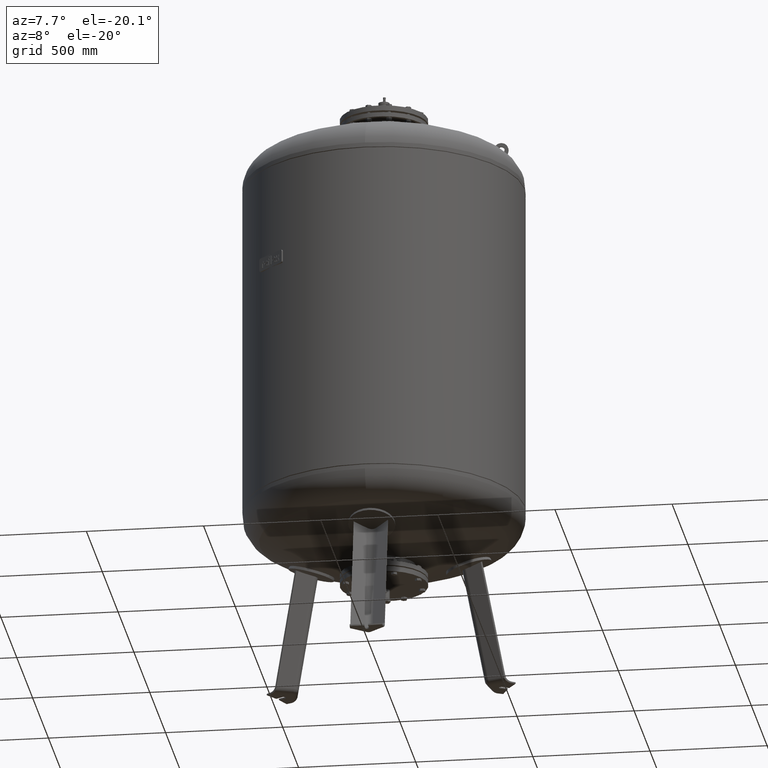
[diagram: clean part render]
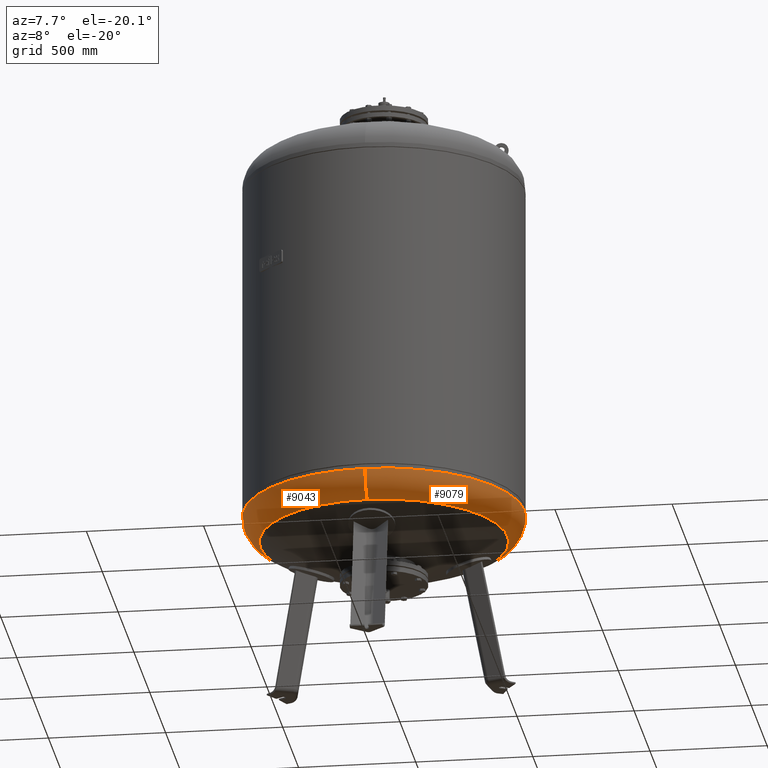
[diagram: same view with one multi-face feature highlighted, each face labeled with its STEP entity id]
A machine part, auxiliary view. The highlighted faces form ONE feature: a constant-radius fillet chain: 2 tangent blend faces with common blend radius 127 mm. The faces share edges in the B-rep.
Their STEP definitions:
[1] entity #9043 (Torus):
#8948=CARTESIAN_POINT('',(-600.0,-4.336858E-014,696.087542566272190));
#8949=VERTEX_POINT('',#8948);
#8973=CARTESIAN_POINT('',(-1.445307E-013,600.0,696.087542566272420));
#8974=VERTEX_POINT('',#8973);
#8982=CARTESIAN_POINT('',(-3.551733E-014,-4.336858E-014,696.087542566272300));
#8983=DIRECTION('',(0.0,0.0,1.0));
#8984=DIRECTION('',(-1.0,0.0,0.0));
#8985=AXIS2_PLACEMENT_3D('',#8982,#8983,#8984);
#8986=CIRCLE('',#8985,600.0);
#8987=EDGE_CURVE('',#8974,#8949,#8986,.T.);
#8992=CARTESIAN_POINT('',(-7.105427E-014,-4.336858E-014,696.087542566272300));
#8993=DIRECTION('',(-1.504413E-016,-1.836970E-016,1.0));
#8994=DIRECTION('',(0.0,-1.0,0.0));
#8995=AXIS2_PLACEMENT_3D('',#8992,#8993,#8994);
#8996=TOROIDAL_SURFACE('',#8995,472.999999999999890,127.000000000000010);
#8997=CARTESIAN_POINT('',(-7.105427E-014,-600.0,696.087542566272190));
#8998=VERTEX_POINT('',#8997);
#8999=CARTESIAN_POINT('',(-5.387807E-014,-528.621296296296240,581.915429516194880));
#9000=VERTEX_POINT('',#8999);
#9001=CARTESIAN_POINT('',(-7.105427E-014,-472.999999999999940,696.087542566272190));
#9002=DIRECTION('',(1.0,0.0,0.0));
#9003=DIRECTION('',(0.0,-1.0,0.0));
#9004=AXIS2_PLACEMENT_3D('',#9001,#9002,#9003);
#9005=CIRCLE('',#9004,127.000000000000010);
#9006=EDGE_CURVE('',#8998,#9000,#9005,.T.);
#9007=ORIENTED_EDGE('',*,*,#9006,.F.);
#9008=CARTESIAN_POINT('',(-3.551733E-014,-4.336858E-014,696.087542566272300));
#9009=DIRECTION('',(0.0,0.0,1.0));
#9010=DIRECTION('',(-1.0,0.0,0.0));
#9011=AXIS2_PLACEMENT_3D('',#9008,#9009,#9010);
#9012=CIRCLE('',#9011,600.0);
#9013=EDGE_CURVE('',#8949,#8998,#9012,.T.);
#9014=ORIENTED_EDGE('',*,*,#9013,.F.);
#9015=ORIENTED_EDGE('',*,*,#8987,.F.);
#9016=CARTESIAN_POINT('',(-1.186134E-013,528.621296296296240,581.915429516195100));
#9017=VERTEX_POINT('',#9016);
#9018=CARTESIAN_POINT('',(-1.289782E-013,472.999999999999830,696.087542566272420));
#9019=DIRECTION('',(-1.0,0.0,0.0));
#9020=DIRECTION('',(0.0,1.0,0.0));
#9021=AXIS2_PLACEMENT_3D('',#9018,#9019,#9020);
#9022=CIRCLE('',#9021,127.000000000000010);
#9023=EDGE_CURVE('',#8974,#9017,#9022,.T.);
#9024=ORIENTED_EDGE('',*,*,#9023,.T.);
#9025=CARTESIAN_POINT('',(-528.621296296296240,-2.239550E-014,581.915429516194990));
#9026=VERTEX_POINT('',#9025);
#9027=CARTESIAN_POINT('',(-1.834112E-014,-2.239550E-014,581.915429516194990));
#9028=DIRECTION('',(0.0,0.0,1.0));
#9029=DIRECTION('',(-1.0,0.0,0.0));
#9030=AXIS2_PLACEMENT_3D('',#9027,#9028,#9029);
#9031=CIRCLE('',#9030,528.621296296296240);
#9032=EDGE_CURVE('',#9017,#9026,#9031,.T.);
#9033=ORIENTED_EDGE('',*,*,#9032,.T.);
#9034=CARTESIAN_POINT('',(-1.834112E-014,-2.239550E-014,581.915429516194990));
#9035=DIRECTION('',(0.0,0.0,1.0));
#9036=DIRECTION('',(-1.0,0.0,0.0));
#9037=AXIS2_PLACEMENT_3D('',#9034,#9035,#9036);
#9038=CIRCLE('',#9037,528.621296296296240);
#9039=EDGE_CURVE('',#9026,#9000,#9038,.T.);
#9040=ORIENTED_EDGE('',*,*,#9039,.T.);
#9041=EDGE_LOOP('',(#9007,#9014,#9015,#9024,#9033,#9040));
#9042=FACE_OUTER_BOUND('',#9041,.T.);
#9043=ADVANCED_FACE('',(#9042),#8996,.T.);
[2] entity #9079 (Torus):
#8965=CARTESIAN_POINT('',(599.999999999999890,3.010780E-014,696.087542566272300));
#8966=VERTEX_POINT('',#8965);
#8973=CARTESIAN_POINT('',(-1.445307E-013,600.0,696.087542566272420));
#8974=VERTEX_POINT('',#8973);
#8975=CARTESIAN_POINT('',(-3.551733E-014,-4.336858E-014,696.087542566272300));
#8976=DIRECTION('',(0.0,0.0,1.0));
#8977=DIRECTION('',(-1.0,0.0,0.0));
#8978=AXIS2_PLACEMENT_3D('',#8975,#8976,#8977);
#8979=CIRCLE('',#8978,600.0);
#8980=EDGE_CURVE('',#8966,#8974,#8979,.T.);
#8997=CARTESIAN_POINT('',(-7.105427E-014,-600.0,696.087542566272190));
#8998=VERTEX_POINT('',#8997);
#8999=CARTESIAN_POINT('',(-5.387807E-014,-528.621296296296240,581.915429516194880));
#9000=VERTEX_POINT('',#8999);
#9001=CARTESIAN_POINT('',(-7.105427E-014,-472.999999999999940,696.087542566272190));
#9002=DIRECTION('',(1.0,0.0,0.0));
#9003=DIRECTION('',(0.0,-1.0,0.0));
#9004=AXIS2_PLACEMENT_3D('',#9001,#9002,#9003);
#9005=CIRCLE('',#9004,127.000000000000010);
#9006=EDGE_CURVE('',#8998,#9000,#9005,.T.);
#9016=CARTESIAN_POINT('',(-1.186134E-013,528.621296296296240,581.915429516195100));
#9017=VERTEX_POINT('',#9016);
#9018=CARTESIAN_POINT('',(-1.289782E-013,472.999999999999830,696.087542566272420));
#9019=DIRECTION('',(-1.0,0.0,0.0));
#9020=DIRECTION('',(0.0,1.0,0.0));
#9021=AXIS2_PLACEMENT_3D('',#9018,#9019,#9020);
#9022=CIRCLE('',#9021,127.000000000000010);
#9023=EDGE_CURVE('',#8974,#9017,#9022,.T.);
#9051=CARTESIAN_POINT('',(-1.834112E-014,-2.239550E-014,581.915429516194990));
#9052=DIRECTION('',(0.0,0.0,1.0));
#9053=DIRECTION('',(-1.0,0.0,0.0));
#9054=AXIS2_PLACEMENT_3D('',#9051,#9052,#9053);
#9055=CIRCLE('',#9054,528.621296296296240);
#9056=EDGE_CURVE('',#9000,#9017,#9055,.T.);
#9061=CARTESIAN_POINT('',(-7.105427E-014,-4.336858E-014,696.087542566272300));
#9062=DIRECTION('',(-1.504413E-016,-1.836970E-016,1.0));
#9063=DIRECTION('',(0.0,-1.0,0.0));
#9064=AXIS2_PLACEMENT_3D('',#9061,#9062,#9063);
#9065=TOROIDAL_SURFACE('',#9064,472.999999999999890,127.000000000000010);
#9066=ORIENTED_EDGE('',*,*,#9006,.T.);
#9067=ORIENTED_EDGE('',*,*,#9056,.T.);
#9068=ORIENTED_EDGE('',*,*,#9023,.F.);
#9069=ORIENTED_EDGE('',*,*,#8980,.F.);
#9070=CARTESIAN_POINT('',(-3.551733E-014,-4.336858E-014,696.087542566272300));
#9071=DIRECTION('',(0.0,0.0,1.0));
#9072=DIRECTION('',(-1.0,0.0,0.0));
#9073=AXIS2_PLACEMENT_3D('',#9070,#9071,#9072);
#9074=CIRCLE('',#9073,600.0);
#9075=EDGE_CURVE('',#8998,#8966,#9074,.T.);
#9076=ORIENTED_EDGE('',*,*,#9075,.F.);
#9077=EDGE_LOOP('',(#9066,#9067,#9068,#9069,#9076));
#9078=FACE_OUTER_BOUND('',#9077,.T.);
#9079=ADVANCED_FACE('',(#9078),#9065,.T.);